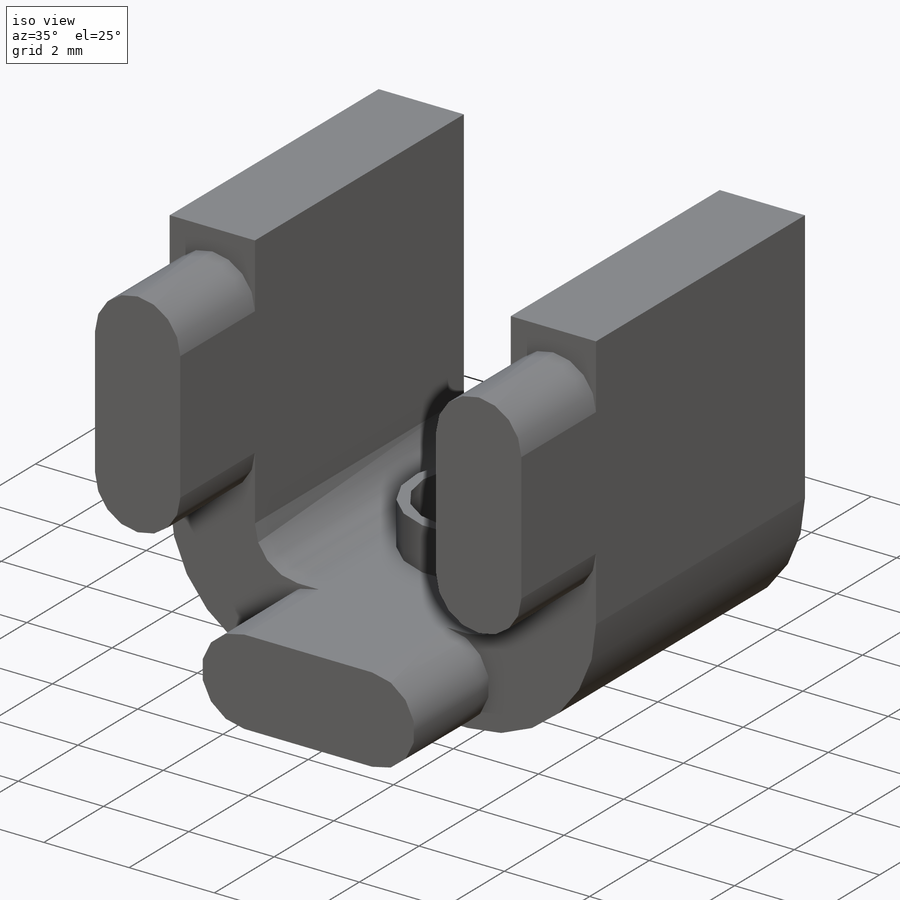
[diagram: iso view]
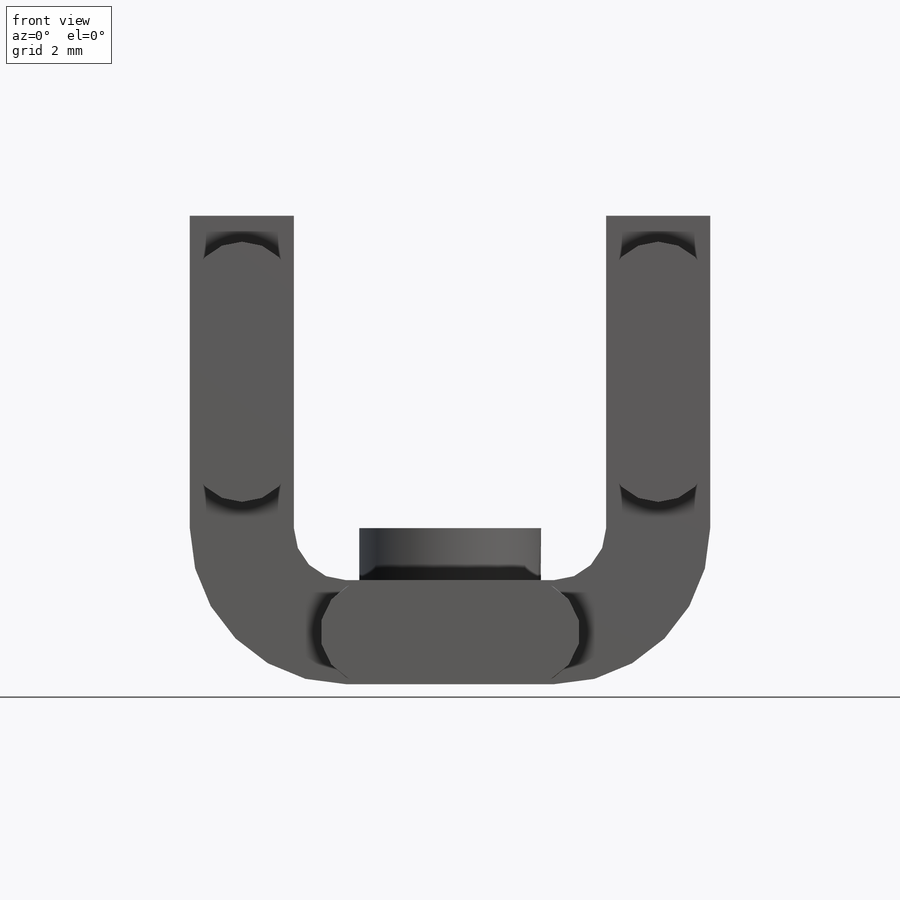
[diagram: front view]
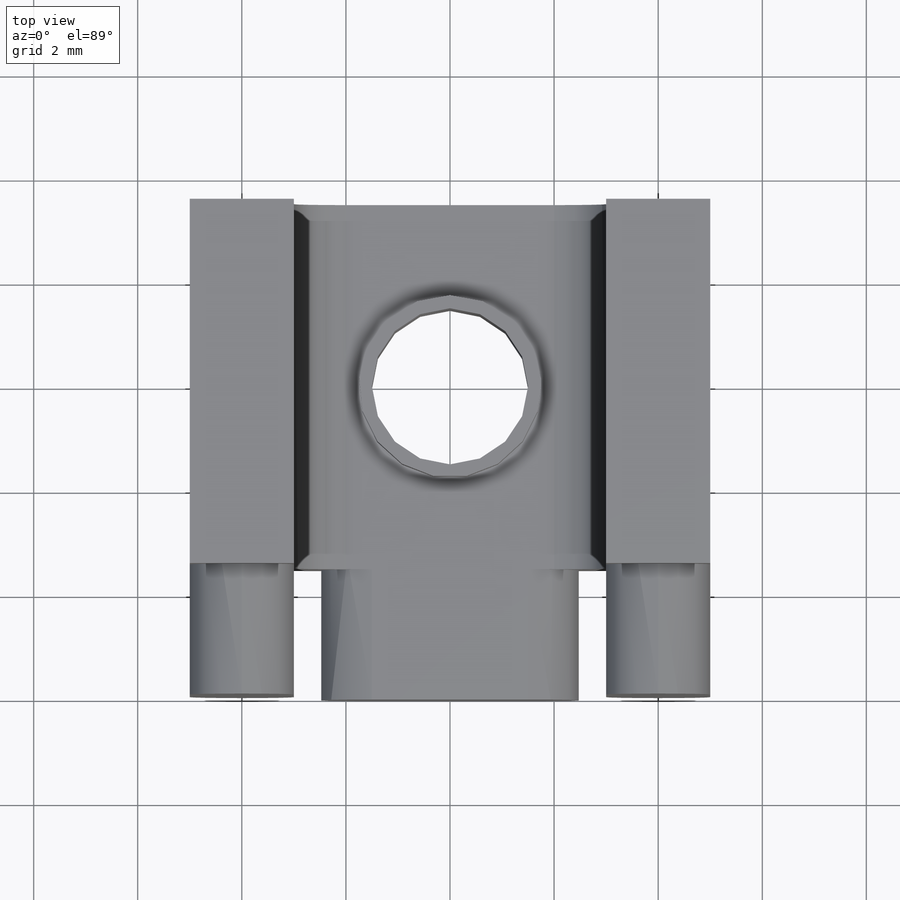
[diagram: top view]
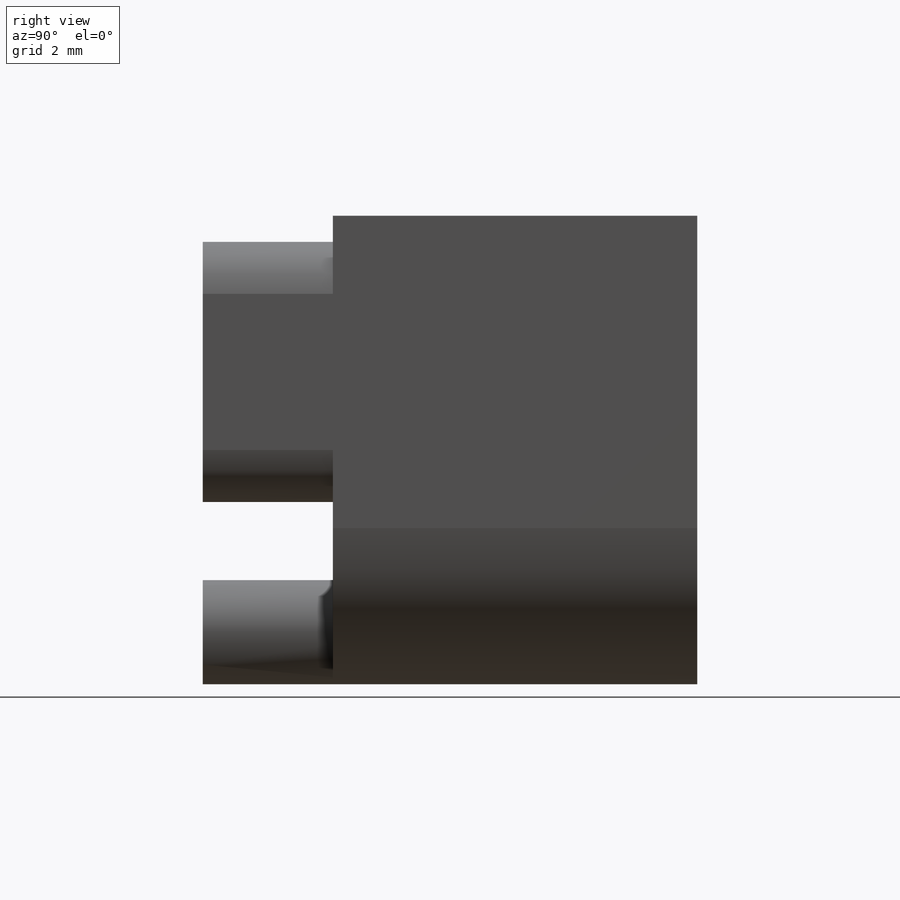
[diagram: right view]
SOLIDWORKS PART (.sldprt)
format: sldprt  version: not decoded by parser v0  size: 295,424 bytes
history: native  units: mm
features: sketch x9, plane x3, sheet_metal_op x3, fillet x2, material x1, cut_extrude x1, extrude x1 + 2 further entries (+12 scaffold rows collapsed)
feature tree (34):
  scaffold x12  (default folders/planes/origin — collapsed)
  material  "Matériau <non spécifié>"
  plane  "Face"
  plane  "Dessus"
  plane  "Droite"
  sketch  "Esquisse1"  dims[c1.D1=~13.184947mm c2.D1=7.0mm c2.D2=6.0mm c3.D1=7.0mm c3.D2=7.0mm c3.D3=6.0mm c3.D4=3.0mm c4.D1=7.0mm c4.Epaisseur=2.0mm c4.D6=1.0mm c4.D7=5.0mm]
  sheet_metal_op  "Tôlerie 2"
  sketch  "Esquisse-Angle2"  dims[c1.Pli dans angle5=0.0 c1.D1=0.0mm c1.D4=90.0deg c1.D5=2.0 c1.D8=0.0mm c1.D9=0.0mm c2.D1=0.0mm]
  sketch  "Esquisse-Plate2"  dims[D1=0.0mm]
  sketch  "Esquisse10"  dims[D1=3.0mm D2=3.5mm D3=3.5mm]
  cut_extrude  "Enlèv. mat.-Extru.1"  [1 undecoded]
  sketch  "Esquisse11"  dims[D1=2.5mm D2=5.0mm D3=0.5mm]
  sheet_metal_op  "Patte1"
  fillet  "Congé2"  Radius=1mm
  sketch  "Esquisse13"  dims[D1=5.0mm]
  sheet_metal_op  "Patte2"
  fillet  "Congé9"  Radius=1mm
  sketch  "Esquisse15"  dims[D1=3.0mm D2=1.5mm]
  extrude  "Extrusion2"  Depth=2.5mm
  sketch  "Esquisse16"  dims[D1=1.0mm D5=0.25mm D6=1.0mm D7=5.0mm]
  "Etat déplié2"
  sketch  "Lignes de pliage2"
  "Dépliage-<Pli dans angle6>1"
decode coverage: 11 of 16 modeling features carry decoded parameters; 2 rows unclassified (native names shown)
note: ~ marks probable driven/reference dimensions
note: 1 parameter value undecoded
note: suppression state not decoded; provenance and decode notes live in map.json
